MODEL DC_Motor_Model
KIND model
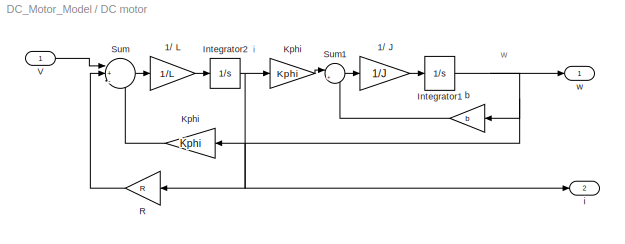
BLOCK [SubSystem] DC motor
  FunctionWithSeparateData = off
  MaskCallbackString = ||||
  MaskDescription = Takes the DC voltage as input, and outputs angular velocity (w) and current (i)\nL => windings inductance		Kphi => emf constant\nJ => loads moment of inertial		b => viscous friction\nR => windings resistance
  MaskDisplay = port_label('input', 1, 'V')\nport_label('output', 2, 'i')\nport_label('output', 1, 'w')\ndisp('DC Motor')
  MaskEnableString = on,on,on,on,on
  MaskHideContents = off
  MaskIconFrame = on
  MaskIconOpaque = on
  MaskIconRotate = none
  MaskIconUnits = autoscale
  MaskPromptString = L:|Kphi:|J:|b:|R:
  MaskStyleString = edit,edit,edit,edit,edit
  MaskTabNameString = ,,,,
  MaskToolTipString = on,on,on,on,on
  MaskTunableValueString = on,on,on,on,on
  MaskType = DC Motor
  MaskValueString = 0.1|0.3|0.1|0.01|2
  MaskVarAliasString = ,,,,
  MaskVariables = L=@1;Kphi=@2;J=@3;b=@4;R=@5;
  MaskVisibilityString = on,on,on,on,on
  MinAlgLoopOccurrences = off
  Ports = [1, 2]
  RTWSystemCode = Auto
BLOCK [Gain] DC motor/1// J
  Gain = 1/J
  OutDataTypeMode = Inherit via internal rule
  ParameterDataTypeMode = Inherit via internal rule
  SaturateOnIntegerOverflow = off
BLOCK [Gain] DC motor/1// L
  Gain = 1/L
  OutDataTypeMode = Inherit via internal rule
  ParameterDataTypeMode = Inherit via internal rule
  SaturateOnIntegerOverflow = off
BLOCK [Integrator] DC motor/Integrator1
  IgnoreLimit = off
  Ports = [1, 1]
BLOCK [Integrator] DC motor/Integrator2
  IgnoreLimit = off
  Ports = [1, 1]
BLOCK [Gain] DC motor/Kphi
  Gain = Kphi
  OutDataTypeMode = Inherit via internal rule
  ParameterDataTypeMode = Inherit via internal rule
  SaturateOnIntegerOverflow = off
BLOCK [Gain] DC motor/Kphi 
  Gain = Kphi
  OutDataTypeMode = Inherit via internal rule
  ParameterDataTypeMode = Inherit via internal rule
  SaturateOnIntegerOverflow = off
BLOCK [Gain] DC motor/R
  Gain = R
  OutDataTypeMode = Inherit via internal rule
  ParameterDataTypeMode = Inherit via internal rule
  SaturateOnIntegerOverflow = off
BLOCK [Sum] DC motor/Sum
  IconShape = round
  InputSameDT = off
  Inputs = |+--
  OutDataTypeMode = Inherit via internal rule
  Ports = [3, 1]
  SaturateOnIntegerOverflow = off
BLOCK [Sum] DC motor/Sum1
  IconShape = round
  InputSameDT = off
  Inputs = |+-
  OutDataTypeMode = Inherit via internal rule
  Ports = [2, 1]
  SaturateOnIntegerOverflow = off
BLOCK [Inport] DC motor/V
  IconDisplay = Port number
BLOCK [Gain] DC motor/b
  Gain = b
  OutDataTypeMode = Inherit via internal rule
  ParameterDataTypeMode = Inherit via internal rule
  SaturateOnIntegerOverflow = off
BLOCK [Outport] DC motor/i
  BusOutputAsStruct = off
  IconDisplay = Port number
  Port = 2
BLOCK [Outport] DC motor/w
  BusOutputAsStruct = off
  IconDisplay = Port number
BLOCK [Mux] Mux
  DisplayOption = bar
  Inputs = 3
  Ports = [3, 1]
BLOCK [Scope] Scope
  DataFormat = StructureWithTime
  Floating = off
  NumInputPorts = 1
  Ports = [1]
  SampleTime = 0
  TimeRange = 10
  YMax = 400
  YMin = 0
BLOCK [Constant] Voltage I//P
  ConRadixGroup = Use specified scaling
  FramePeriod = inf
  OutDataType = sfix(16)
  OutDataTypeMode = Inherit from 'Constant value'
  OutScaling = 2^0
  SampleTime = inf
  SamplingMode = Sample based
  Value = 110
  VectorParams1D = on
ANNOTATION (root): Author: Wesam ELSHAMY\<email>
ANNOTATION (root): DC Motor model
ANNOTATION DC motor: i
ANNOTATION DC motor: w
LINE DC motor/1// J:1 -> DC motor/Integrator1:1
LINE DC motor/1// L:1 -> DC motor/Integrator2:1
NET DC motor/Integrator1:1 -> DC motor/Kphi :1, DC motor/b:1, DC motor/w:1
NET DC motor/Integrator2:1 -> DC motor/Kphi:1, DC motor/R:1, DC motor/i:1
LINE DC motor/Kphi :1 -> DC motor/Sum:3
LINE DC motor/Kphi:1 -> DC motor/Sum1:1
LINE DC motor/R:1 -> DC motor/Sum:2
LINE DC motor/Sum1:1 -> DC motor/1// J:1
LINE DC motor/Sum:1 -> DC motor/1// L:1
LINE DC motor/V:1 -> DC motor/Sum:1
LINE DC motor/b:1 -> DC motor/Sum1:2
LINE DC motor:1 -> Mux:1
LINE DC motor:2 -> Mux:2
LINE Mux:1 -> Scope:1
NET Voltage I//P:1 -> DC motor:1, Mux:3
note: NET lines group one-source signal fan-out (src -> all destinations, sorted); 1:1 wires keep LINE
